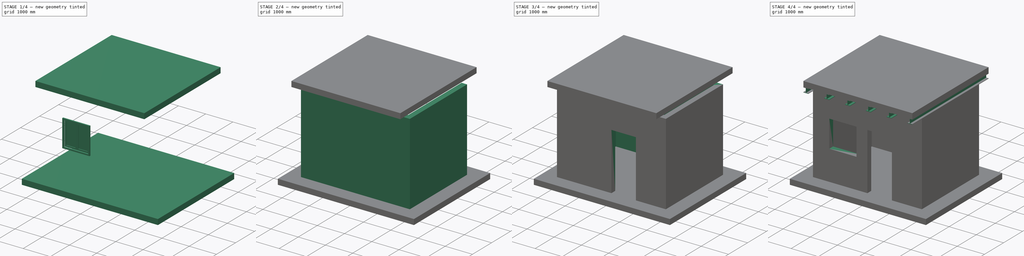
[diagram: build sequence overview — one tinted view per stage of 4, left to right]
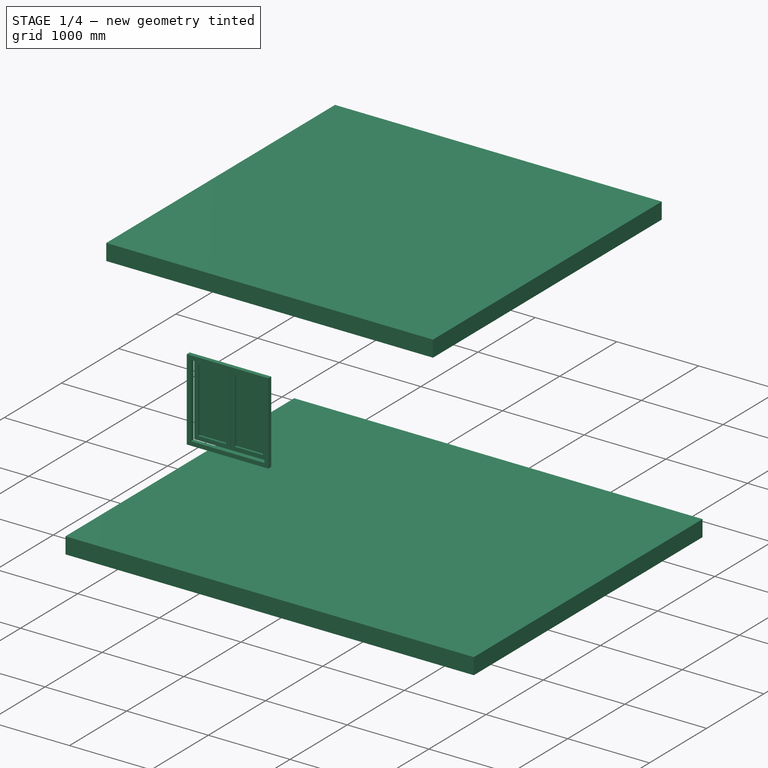
[diagram: stage 1 of 4 — iso view after this stage's code; geometry added in this stage tinted green]
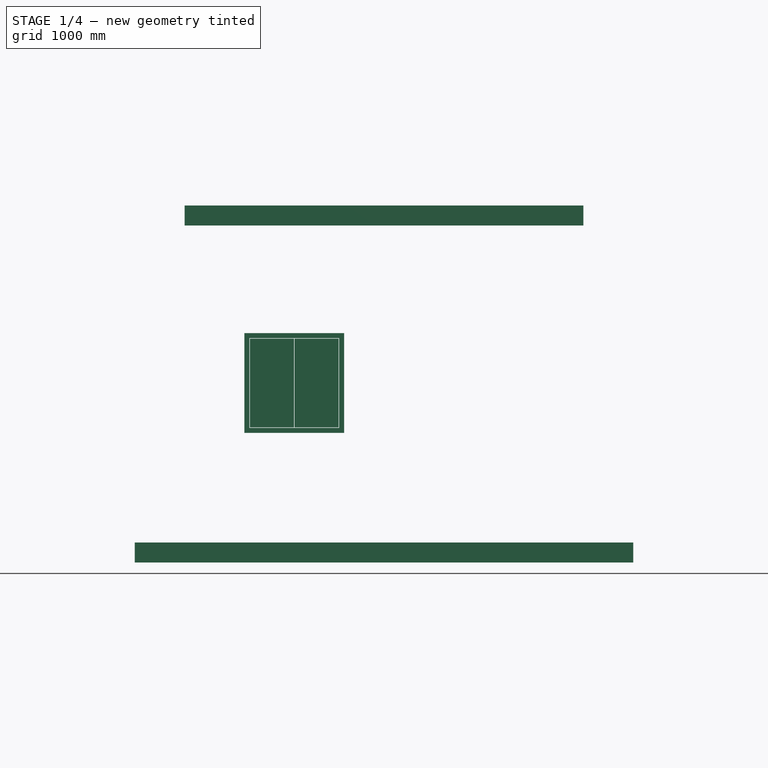
[diagram: stage 1 of 4 — front view after this stage's code; geometry added in this stage tinted green]
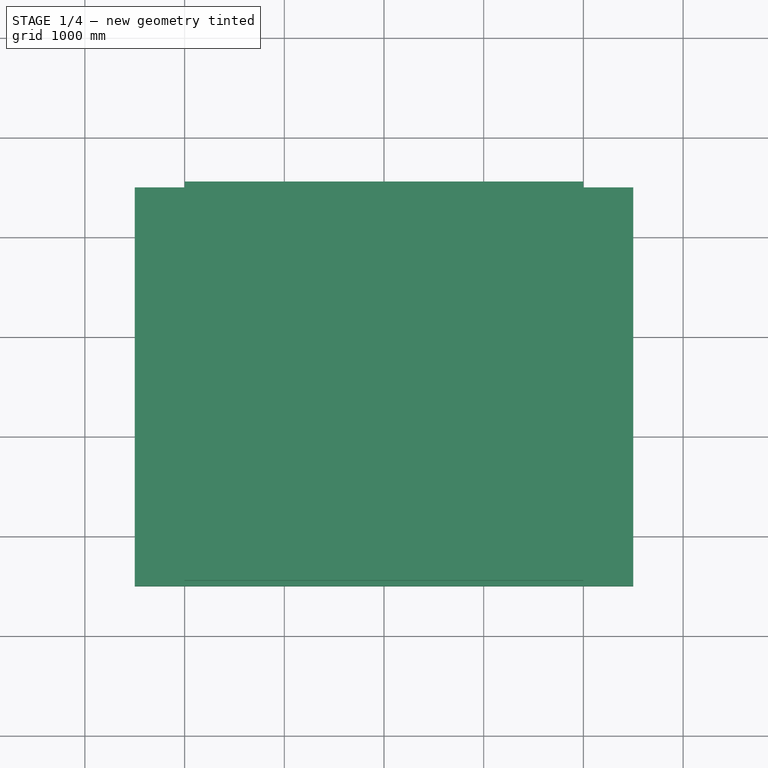
[diagram: stage 1 of 4 — top view after this stage's code; geometry added in this stage tinted green]
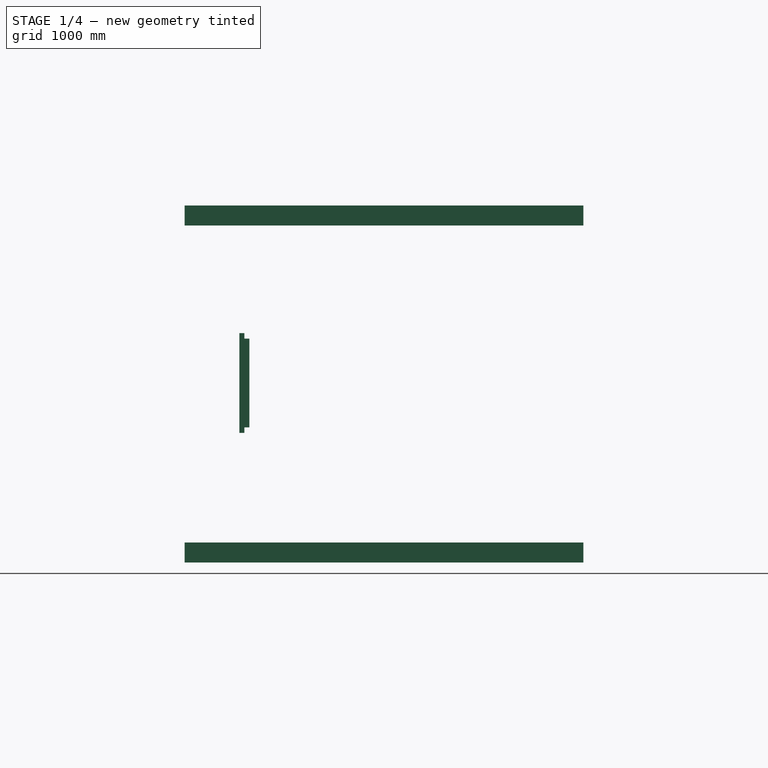
[diagram: stage 1 of 4 — right view after this stage's code; geometry added in this stage tinted green]
FCSTD DOCUMENT  (FreeCAD 0.16R6392 (Git))
Label: house
License: All rights reserved
LicenseURL: http://en.wikipedia.org/wiki/All_rights_reserved
objects: App::FeaturePython×14, Part::FeaturePython×12, Part::Part2DObjectPython×7, Drawing::FeatureViewPython×4, Sketcher::SketchObject×2, App::DocumentObjectGroup×2, App::DocumentObjectGroupPython×2, Drawing::FeaturePage×1
note: 23 computed .brp shape members not serialized (recipe doc carries the construction recipe); baked Part::Feature solids carry a one-line shape summary decoded from their .brp

FEATURE [Sketcher::SketchObject] Sketch001
  Placement = pos=(600,0,1100) rot=(1,0,0;1.5708rad)
  sketch-geometry (24):
    g0: LineSegment StartX=0 StartY=0 StartZ=0 EndX=1000 EndY=0 EndZ=0
    g1: LineSegment StartX=1000 StartY=0 StartZ=0 EndX=1000 EndY=1000 EndZ=0
    g2: LineSegment StartX=1000 StartY=1000 StartZ=0 EndX=0 EndY=1000 EndZ=0
    g3: LineSegment StartX=0 StartY=1000 StartZ=0 EndX=0 EndY=0 EndZ=0
    g4: LineSegment StartX=50 StartY=50 StartZ=0 EndX=950 EndY=50 EndZ=0
    g5: LineSegment StartX=950 StartY=50 StartZ=0 EndX=950 EndY=950 EndZ=0
    g6: LineSegment StartX=950 StartY=950 StartZ=0 EndX=50 EndY=950 EndZ=0
    g7: LineSegment StartX=50 StartY=950 StartZ=0 EndX=50 EndY=50 EndZ=0
    g8: LineSegment StartX=55 StartY=55 StartZ=0 EndX=497.5 EndY=55 EndZ=0
    g9: LineSegment StartX=497.5 StartY=55 StartZ=0 EndX=497.5 EndY=945 EndZ=0
    g10: LineSegment StartX=497.5 StartY=945 StartZ=0 EndX=55 EndY=945 EndZ=0
    g11: LineSegment StartX=55 StartY=945 StartZ=0 EndX=55 EndY=55 EndZ=0
    g12: LineSegment StartX=105 StartY=105 StartZ=0 EndX=447.5 EndY=105 EndZ=0
    g13: LineSegment StartX=447.5 StartY=105 StartZ=0 EndX=447.5 EndY=895 EndZ=0
    g14: LineSegment StartX=447.5 StartY=895 StartZ=0 EndX=105 EndY=895 EndZ=0
    g15: LineSegment StartX=105 StartY=895 StartZ=0 EndX=105 EndY=105 EndZ=0
    g16: LineSegment StartX=502.5 StartY=55 StartZ=0 EndX=945 EndY=55 EndZ=0
    g17: LineSegment StartX=945 StartY=55 StartZ=0 EndX=945 EndY=945 EndZ=0
    g18: LineSegment StartX=945 StartY=945 StartZ=0 EndX=502.5 EndY=945 EndZ=0
    g19: LineSegment StartX=502.5 StartY=945 StartZ=0 EndX=502.5 EndY=55 EndZ=0
    g20: LineSegment StartX=552.5 StartY=105 StartZ=0 EndX=895 EndY=105 EndZ=0
    g21: LineSegment StartX=895 StartY=105 StartZ=0 EndX=895 EndY=895 EndZ=0
    g22: LineSegment StartX=895 StartY=895 StartZ=0 EndX=552.5 EndY=895 EndZ=0
    g23: LineSegment StartX=552.5 StartY=895 StartZ=0 EndX=552.5 EndY=105 EndZ=0
  constraints (71):
    c: Coincident(g0,g1)
    c: Coincident(g1,g2)
    c: Coincident(g2,g3)
    c: Coincident(g3,g0)
    c: Horizontal(g0)
    c: Horizontal(g2)
    c: Vertical(g1)
    c: Vertical(g3)
    c: Coincident(g4,g5)
    c: Coincident(g5,g6)
    c: Coincident(g6,g7)
    c: Coincident(g7,g4)
    c: Horizontal(g4)
    c: Horizontal(g6)
    c: Vertical(g5)
    c: Vertical(g7)
    c: DistanceY(g1) = 1000
    c: DistanceX(g0) = 1000
    c: DistanceY(g6,g2) = 50
    c: DistanceX(g2,g6) = 50
    c: DistanceX(g4,g0) = 50
    c: DistanceY(g0,g4) = 50
    c: Coincident(g0,g-1)
    c: Coincident(g8,g9)
    c: Coincident(g9,g10)
    c: Coincident(g10,g11)
    c: Coincident(g11,g8)
    c: Horizontal(g8)
    c: Horizontal(g10)
    c: Vertical(g9)
    c: Vertical(g11)
    c: Coincident(g12,g13)
    c: Coincident(g13,g14)
    c: Coincident(g14,g15)
    c: Coincident(g15,g12)
    c: Horizontal(g12)
    c: Horizontal(g14)
    c: Vertical(g13)
    c: Vertical(g15)
    c: Coincident(g16,g17)
    c: Coincident(g17,g18)
    c: Coincident(g18,g19)
    c: Coincident(g19,g16)
    c: Horizontal(g16)
    c: Horizontal(g18)
    c: Vertical(g17)
    c: Vertical(g19)
    c: Coincident(g20,g21)
    c: Coincident(g21,g22)
    c: Coincident(g22,g23)
    c: Coincident(g23,g20)
    c: Horizontal(g20)
    c: Horizontal(g22)
    c: Vertical(g21)
    c: Vertical(g23)
    c: DistanceY(g8,g12) = 50
    c: DistanceX(g8,g12) = 50
    c: DistanceX(g21,g17) = 50
    c: DistanceY(g21,g17) = 50
    c: DistanceX(g16,g20) = 50
    c: DistanceX(g14,g10) = 50
    c: Equal(g22,g14)
    c: DistanceY(g8,g16) = 0
    c: DistanceY(g10,g18) = 0
    c: DistanceX(g4,g8) = 5
    c: DistanceY(g4,g8) = 5
    c: DistanceX(g6,g18) = -5
    c: DistanceY(g6,g18) = -5
    c: DistanceX(g9,g19) = 5
    c: PointOnObject(g13,g22)
    c: PointOnObject(g20,g12)
FEATURE [Part::FeaturePython] Window001  # WARN: FeaturePython — macro-defined, semantics opaque (R4)
  Base = -> Sketch001
  Height = 1000
  HoleDepth = 0
  MoveWithHost = true
  Normal = (0,1,0)
  Preset = 3
  Role = 0
  Width = 1000
  WindowParts = OuterFrame | Frame | Wire0,Wire1 | 50.0 | 50.0 | LeftFrame | Frame | Wire2,Wire3 | 50.0 | 100.0 | LeftGlass | Glass panel | Wire3 | 5.0 | 125.0 | RightFrame | Frame | Wire4,Wire5 | 50.0 | 100.0 | RightGlass | Glass panel | Wire5 | 5.0 | 125.0
FEATURE [Part::Part2DObjectPython] Rectangle  # Draft 2D object (typed FeaturePython)
  ChamferSize = 0
  Columns = 1
  FilletRadius = 0
  Height = -4000
  Length = -4000
  MakeFace = true
  Placement = pos=(0,-500,3180) rot=(0,0,1;3.14159rad)
  Rows = 1
FEATURE [Part::FeaturePython] Structure001  # WARN: FeaturePython — macro-defined, semantics opaque (R4)
  Base = -> Rectangle
  Height = 200
  Length = 0
  MoveWithHost = false
  Nodes = (2) [(2000,1500,3180),(2000,1500,3380)]
  Normal = (0,0,1)
  Role = 1
  Width = 200
FEATURE [App::FeaturePython] Dimension  # Draft dimension (typed FeaturePython)
  Dimline = (0,-1000,0)
  Direction = (0,0,0)
  Distance = 600
  End = (600,0,0)
  Normal = (0,0,1)
  Start = (0,0,0)
FEATURE [App::FeaturePython] Dimension001  # Draft dimension (typed FeaturePython)
  Dimline = (497.34,-1000,0)
  Direction = (0,0,0)
  Distance = 1000
  End = (1600,0,0)
  Normal = (0,0,1)
  Start = (600,0,0)
FEATURE [App::FeaturePython] Dimension002  # Draft dimension (typed FeaturePython)
  Dimline = (2000,-1000,0)
  Direction = (0,0,0)
  Distance = 400
  End = (2000,0,0)
  Normal = (0,0,1)
  Start = (1600,0,0)
FEATURE [App::FeaturePython] Dimension003  # Draft dimension (typed FeaturePython)
  Dimline = (3000,-1000,0)
  Direction = (0,0,0)
  Distance = 900
  End = (2900,0,0)
  Normal = (0,0,1)
  Start = (2000,0,0)
FEATURE [App::FeaturePython] Dimension004  # Draft dimension (typed FeaturePython)
  Dimline = (4000,-1000,0)
  Direction = (0,0,0)
  Distance = 1100
  End = (4000,0,0)
  Normal = (0,0,1)
  Start = (2900,0,0)
FEATURE [App::FeaturePython] Dimension005  # Draft dimension (typed FeaturePython)
  Dimline = (5000,2000,0)
  Direction = (0,0,0)
  Distance = 3000
  End = (4000,3000,0)
  Normal = (0,0,1)
  Start = (4000,0,0)
FEATURE [App::FeaturePython] Dimension006  # Draft dimension (typed FeaturePython)
  Dimline = (3771.03,-1538.27,0)
  Direction = (0,0,0)
  Distance = 4000
  End = (4000,0,0)
  Normal = (0,0,1)
  Start = (0,0,0)
FEATURE [App::DocumentObjectGroup] Group  label="Plan dimensions"
  Group = -> [Dimension,Dimension001,Dimension002,Dimension003,Dimension004,Dimension005,Dimension006]
FEATURE [App::FeaturePython] Dimension007  # Draft dimension (typed FeaturePython)
  Dimline = (-445.624,0,841.422)
  Direction = (0,0,0)
  Distance = 1100
  End = (0,0,1100)
  Normal = (0,-1,0)
  Start = (0,0,0)
FEATURE [App::FeaturePython] Dimension008  # Draft dimension (typed FeaturePython)
  Dimline = (-445.624,0,1100)
  Direction = (0,0,0)
  Distance = 1000
  End = (600,0,2100)
  Normal = (0,-1,0)
  Start = (600,0,1100)
FEATURE [App::FeaturePython] Dimension009  # Draft dimension (typed FeaturePython)
  Dimline = (-445.624,0,1964.12)
  Direction = (0,0,0)
  Distance = 900
  End = (600,0,3000)
  Normal = (0,-1,0)
  Start = (600,0,2100)
FEATURE [App::FeaturePython] Dimension010  # Draft dimension (typed FeaturePython)
  Dimline = (-445.624,0,2939.44)
  Direction = (0,0,0)
  Distance = 380
  End = (0,0,3380)
  Normal = (0,-1,0)
  Start = (0,0,3000)
FEATURE [App::FeaturePython] Dimension011  # Draft dimension (typed FeaturePython)
  Dimline = (-767.464,0,2716.62)
  Direction = (0,0,0)
  Distance = 3380
  End = (0,0,3380)
  Normal = (0,-1,0)
  Start = (0,0,0)
FEATURE [App::DocumentObjectGroup] Group001  label="Elevation dimensions"
  Group = -> [Dimension007,Dimension008,Dimension009,Dimension010,Dimension011]
FEATURE [Part::Part2DObjectPython] Rectangle001  # Draft 2D object (typed FeaturePython)
  ChamferSize = 0
  Columns = 1
  FilletRadius = 0
  Height = -4000
  Length = 5000
  MakeFace = true
  Placement = pos=(-500,3500,0) rot=(0,0,1;0rad)
  Rows = 1
FEATURE [Part::FeaturePython] Structure002  # WARN: FeaturePython — macro-defined, semantics opaque (R4)
  Base = -> Rectangle001
  Height = 200
  Length = 0
  MoveWithHost = false
  Nodes = (2) [(2000,1500,0),(2000,1500,-200)]
  Normal = (0,0,-1)
  Role = 1
  Width = 200
FEATURE [App::DocumentObjectGroupPython] Floor  # scripted group (container) (typed FeaturePython)
  Group = -> [Array,Wall006,Structure001,Structure002]
  Height = 0
FEATURE [App::DocumentObjectGroupPython] Building  # scripted group (container) (typed FeaturePython)
  BuildingType = 0
  Group = -> [Floor]
  Height = 0
FEATURE [App::FeaturePython] Section  # WARN: FeaturePython — macro-defined, semantics opaque (R4)
  Objects = -> [Building]
  OnlySolids = true
  Placement = pos=(2000,1500,1500) rot=(0,0,1;0rad)
FEATURE [Drawing::FeatureViewPython] View  label="View of Section"  # drawing view (typed FeaturePython)
  FontSize = 12
  LineWidth = 0.15
  RenderingMode = 1
  Rotation = 0
  Scale = 0.03
  ShowCut = true
  ShowFill = true
  Source = -> Section
  ViewResult = <blob: 10954 chars omitted>
  Visible = true
  X = 50
  Y = 140
FEATURE [Drawing::FeatureViewPython] ViewGroup  # drawing view (typed FeaturePython)
  Direction = (0,0,0)
  FillStyle = 0
  FontSize = 10
  LineStyle = 0
  LineWidth = 0.15
  Rotation = 0
  Scale = 0.03
  Source = -> Group
  ViewResult = <blob: 5705 chars omitted>
  Visible = true
  X = 50
  Y = 140
FEATURE [App::FeaturePython] Section001  # WARN: FeaturePython — macro-defined, semantics opaque (R4)
  Objects = -> [Building]
  OnlySolids = true
  Placement = pos=(2000,-2000,1500) rot=(1,0,0;1.5708rad)
FEATURE [Drawing::FeatureViewPython] View001  label="View of Section001"  # drawing view (typed FeaturePython)
  FontSize = 12
  LineWidth = 0.35
  RenderingMode = 0
  Rotation = 0
  Scale = 0.03
  ShowCut = false
  ShowFill = false
  Source = -> Section001
  ViewResult = <blob: 4600 chars omitted>
  Visible = true
  X = 250
  Y = 150
FEATURE [Drawing::FeatureViewPython] ViewGroup001  # drawing view (typed FeaturePython)
  Direction = (0,-1,0)
  FillStyle = 0
  FontSize = 10
  LineStyle = 0
  LineWidth = 0.15
  Rotation = 90
  Scale = 0.03
  Source = -> Group001
  ViewResult = <blob: 4541 chars omitted>
  Visible = true
  X = 250
  Y = 150
FEATURE [Drawing::FeaturePage] Page
  EditableTexts = AUTHOR NAME | CREATION DATE | SUPERVISOR NAME | CHECK DATE | SCALE | WEIGHT | NUMBER | SHEET | TITLE | SUBTITLE
  Group = -> [View,ViewGroup,View001,ViewGroup001]
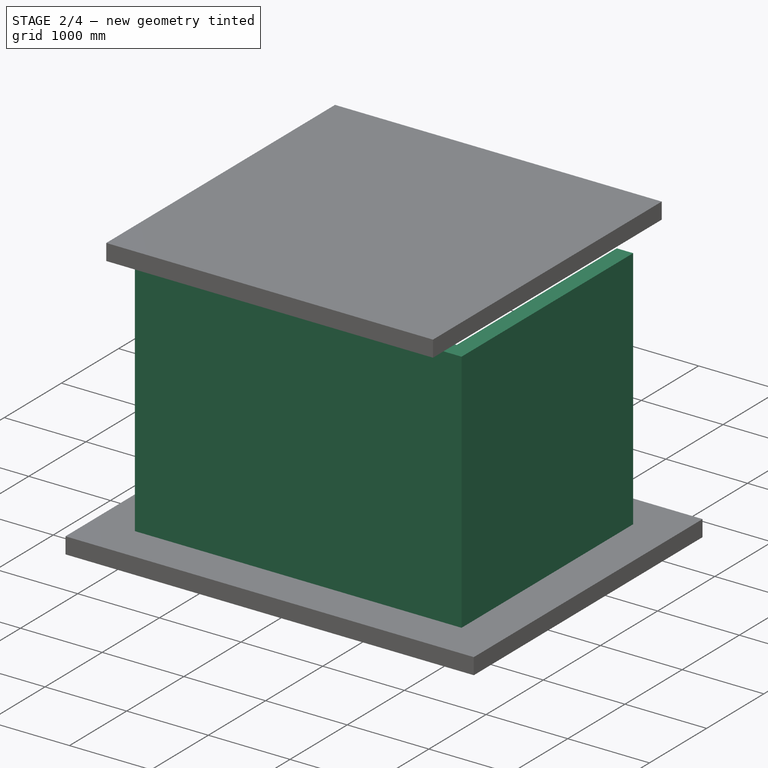
[diagram: stage 2 of 4 — iso view after this stage's code; geometry added in this stage tinted green]
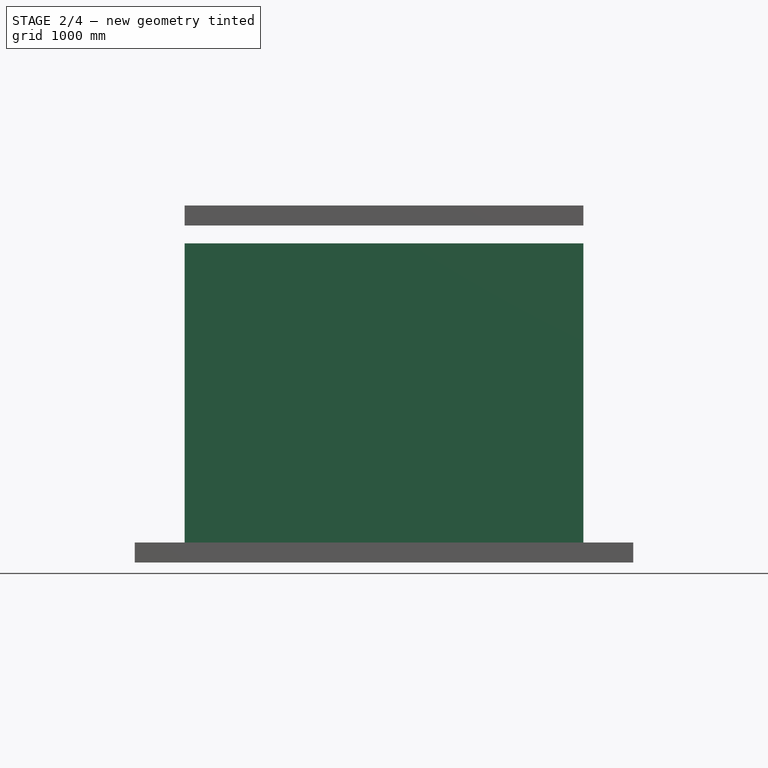
[diagram: stage 2 of 4 — front view after this stage's code; geometry added in this stage tinted green]
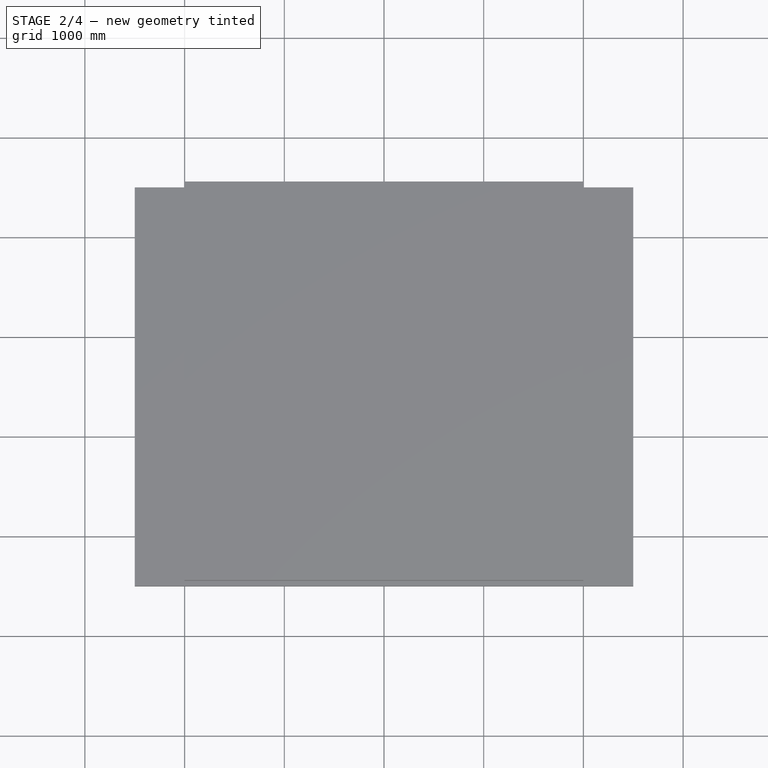
[diagram: stage 2 of 4 — top view after this stage's code; geometry added in this stage tinted green]
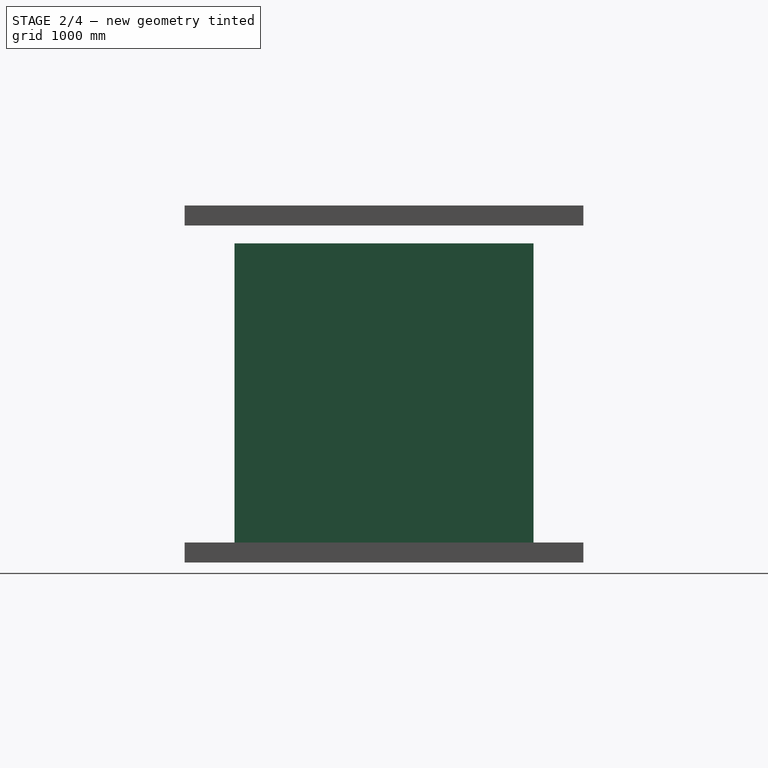
[diagram: stage 2 of 4 — right view after this stage's code; geometry added in this stage tinted green]
FEATURE [Part::FeaturePython] Wall003  # WARN: FeaturePython — macro-defined, semantics opaque (R4)
  Align = 0
  Base = -> Line002
  Face = 0
  Height = 3000
  Length = 3000
  MoveWithHost = false
  Normal = (0,0,0)
  Role = 0
  Width = 200
FEATURE [Part::Part2DObjectPython] Line003  # Draft 2D object (typed FeaturePython)
  ChamferSize = 0
  Closed = false
  End = (0,0,0)
  FilletRadius = 0
  Length = 4000
  MakeFace = false
  Points = (2) [(4000,0,0),(0,0,0)]
  Start = (4000,0,0)
  Subdivisions = 0
FEATURE [Part::FeaturePython] Wall004  # WARN: FeaturePython — macro-defined, semantics opaque (R4)
  Align = 0
  Base = -> Line003
  Face = 0
  Height = 3000
  Length = 4000
  MoveWithHost = false
  Normal = (0,0,0)
  Role = 0
  Width = 200
FEATURE [Sketcher::SketchObject] Sketch
  Placement = pos=(2000,0,0) rot=(1,0,0;1.5708rad)
  sketch-geometry (8):
    g0: LineSegment StartX=0 StartY=0 StartZ=0 EndX=900 EndY=0 EndZ=0
    g1: LineSegment StartX=900 StartY=0 StartZ=0 EndX=900 EndY=2100 EndZ=0
    g2: LineSegment StartX=900 StartY=2100 StartZ=0 EndX=0 EndY=2100 EndZ=0
    g3: LineSegment StartX=0 StartY=2100 StartZ=0 EndX=0 EndY=0 EndZ=0
    g4: LineSegment StartX=50 StartY=0 StartZ=0 EndX=850 EndY=0 EndZ=0
    g5: LineSegment StartX=850 StartY=0 StartZ=0 EndX=850 EndY=2050 EndZ=0
    g6: LineSegment StartX=850 StartY=2050 StartZ=0 EndX=50 EndY=2050 EndZ=0
    g7: LineSegment StartX=50 StartY=2050 StartZ=0 EndX=50 EndY=0 EndZ=0
  constraints (23):
    c: Coincident(g0,g1)
    c: Coincident(g1,g2)
    c: Coincident(g2,g3)
    c: Coincident(g3,g0)
    c: Horizontal(g0)
    c: Horizontal(g2)
    c: Vertical(g1)
    c: Vertical(g3)
    c: Coincident(g4,g5)
    c: Coincident(g5,g6)
    c: Coincident(g6,g7)
    c: Coincident(g7,g4)
    c: Horizontal(g4)
    c: Horizontal(g6)
    c: Vertical(g5)
    c: Vertical(g7)
    c: DistanceY(g1) = 2100
    c: DistanceX(g0) = 900
    c: DistanceY(g6,g2) = 50
    c: DistanceX(g2,g6) = 50
    c: DistanceX(g4,g0) = 50
    c: DistanceY(g0,g4) = 0
    c: Coincident(g0,g-1)
FEATURE [Part::FeaturePython] Window  # WARN: FeaturePython — macro-defined, semantics opaque (R4)
  Base = -> Sketch
  Height = 2100
  HoleDepth = 0
  MoveWithHost = true
  Normal = (0,1,0)
  Preset = 6
  Role = 1
  Width = 900
  WindowParts = OuterFrame | Frame | Wire0,Wire1 | 50.0 | 50.0 | Door | Solid panel | Wire1 | 50.0 | 100.0
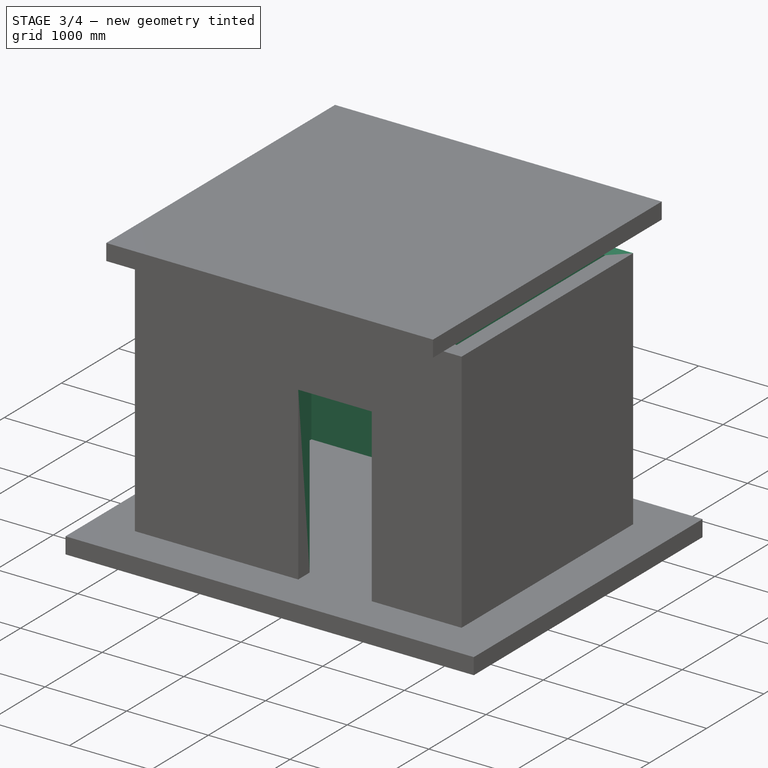
[diagram: stage 3 of 4 — iso view after this stage's code; geometry added in this stage tinted green]
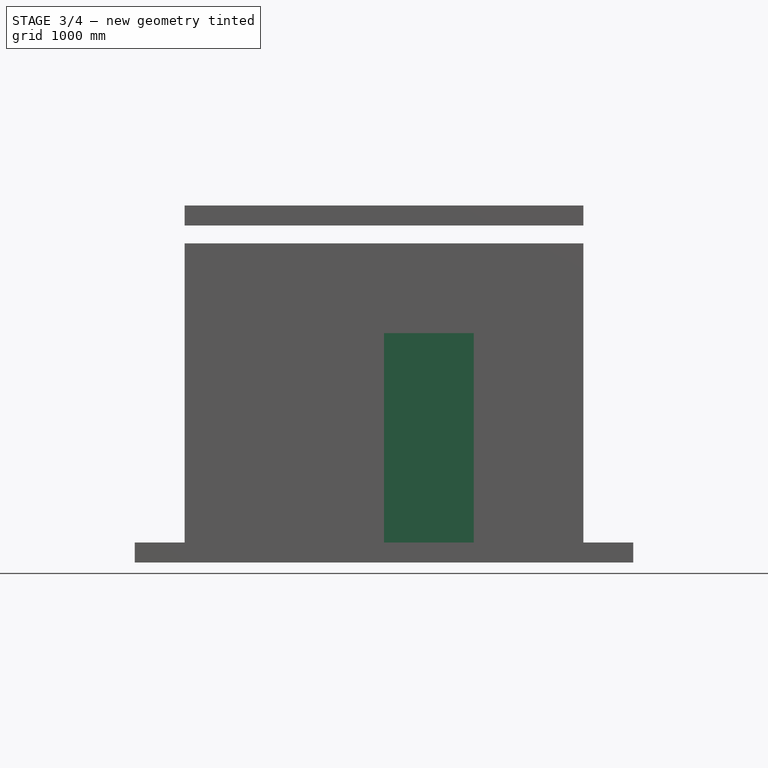
[diagram: stage 3 of 4 — front view after this stage's code; geometry added in this stage tinted green]
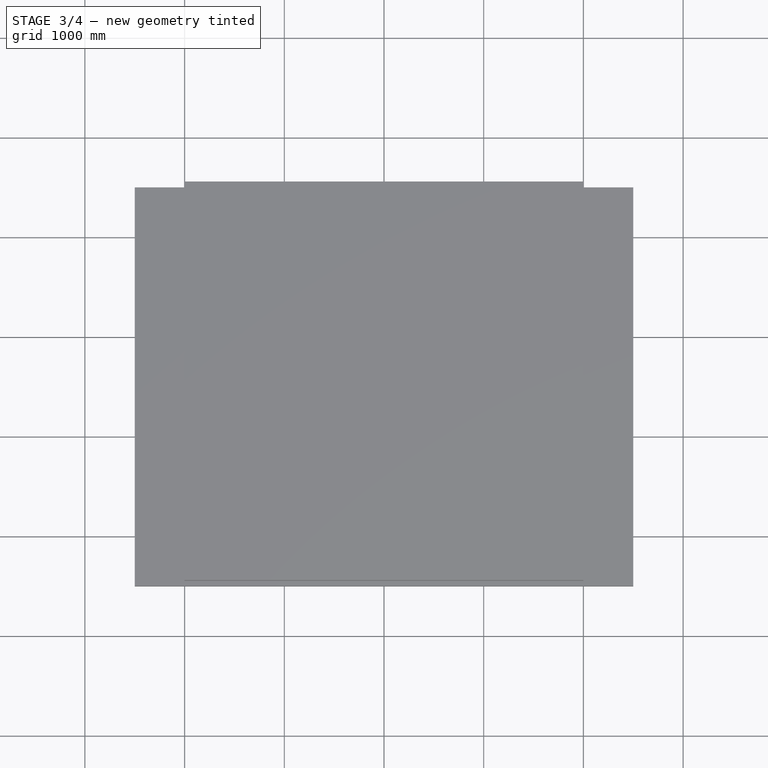
[diagram: stage 3 of 4 — top view after this stage's code; geometry added in this stage tinted green]
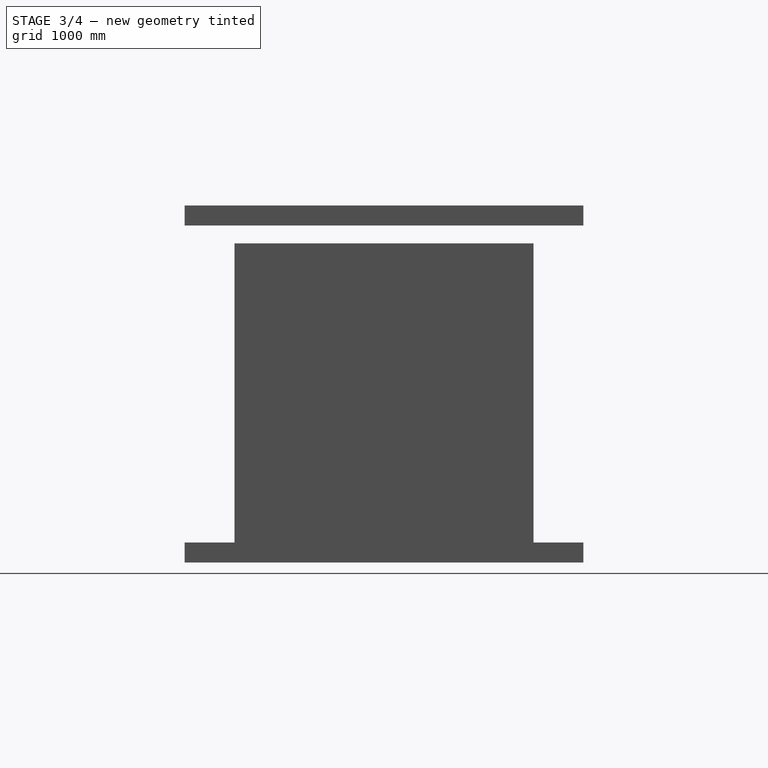
[diagram: stage 3 of 4 — right view after this stage's code; geometry added in this stage tinted green]
FEATURE [Part::Part2DObjectPython] Line  # Draft 2D object (typed FeaturePython)
  ChamferSize = 0
  Closed = false
  End = (0,3000,0)
  FilletRadius = 0
  Length = 3000
  MakeFace = false
  Points = (2) [(0,0,0),(0,3000,0)]
  Start = (0,0,0)
  Subdivisions = 0
FEATURE [Part::Part2DObjectPython] Line001  # Draft 2D object (typed FeaturePython)
  ChamferSize = 0
  Closed = false
  End = (4000,3000,0)
  FilletRadius = 0
  Length = 4000
  MakeFace = false
  Points = (2) [(0,3000,0),(4000,3000,0)]
  Start = (0,3000,0)
  Subdivisions = 0
FEATURE [Part::Part2DObjectPython] Line002  # Draft 2D object (typed FeaturePython)
  ChamferSize = 0
  Closed = false
  End = (4000,0,0)
  FilletRadius = 0
  Length = 3000
  MakeFace = false
  Points = (2) [(4000,3000,0),(4000,0,0)]
  Start = (4000,3000,0)
  Subdivisions = 0
FEATURE [Part::FeaturePython] Wall002  # WARN: FeaturePython — macro-defined, semantics opaque (R4)
  Align = 0
  Base = -> Line001
  Face = 0
  Height = 3000
  Length = 4000
  MoveWithHost = false
  Normal = (0,0,0)
  Role = 0
  Width = 200
FEATURE [Part::FeaturePython] Wall  # WARN: FeaturePython — macro-defined, semantics opaque (R4)
  Additions = -> [Wall004,Wall003,Wall002]
  Align = 0
  Base = -> Line
  Face = 0
  Height = 3000
  Length = 3000
  MoveWithHost = false
  Normal = (0,0,0)
  Role = 0
  Width = 200
FEATURE [Part::FeaturePython] Wall005  # WARN: FeaturePython — macro-defined, semantics opaque (R4)
  Align = 2
  Base = -> Wall
  Face = 0
  Height = 2000
  Length = 0
  MoveWithHost = false
  Normal = (0,0,0)
  Role = 0
  Subtractions = -> [Window]
  Width = 200
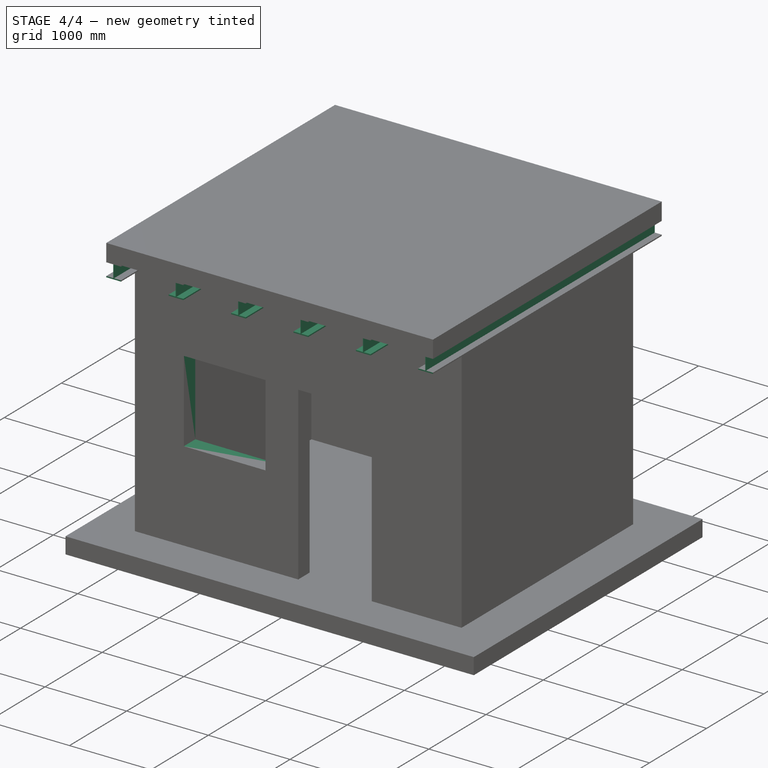
[diagram: stage 4 of 4 — iso view after this stage's code; geometry added in this stage tinted green]
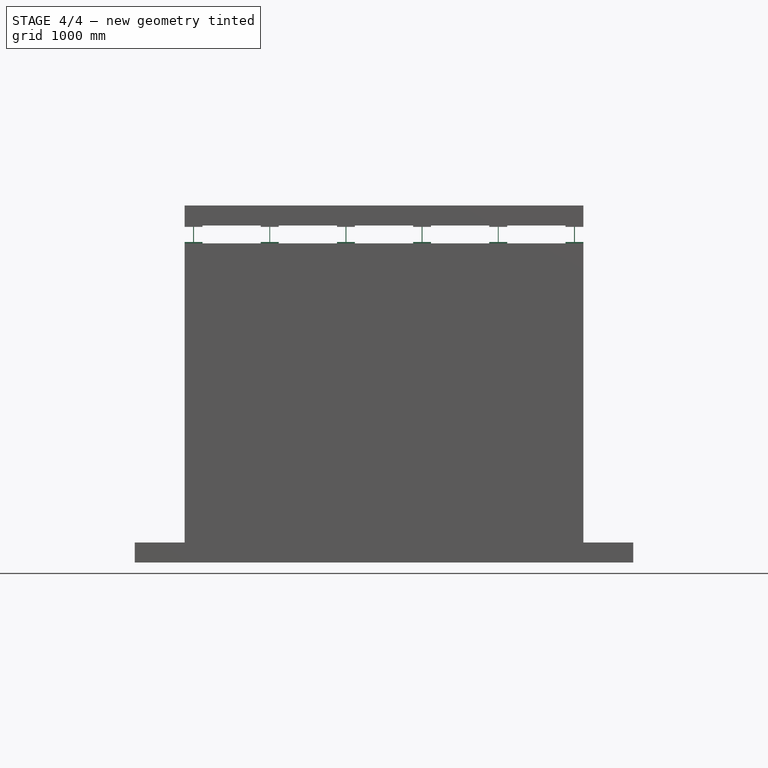
[diagram: stage 4 of 4 — front view after this stage's code; geometry added in this stage tinted green]
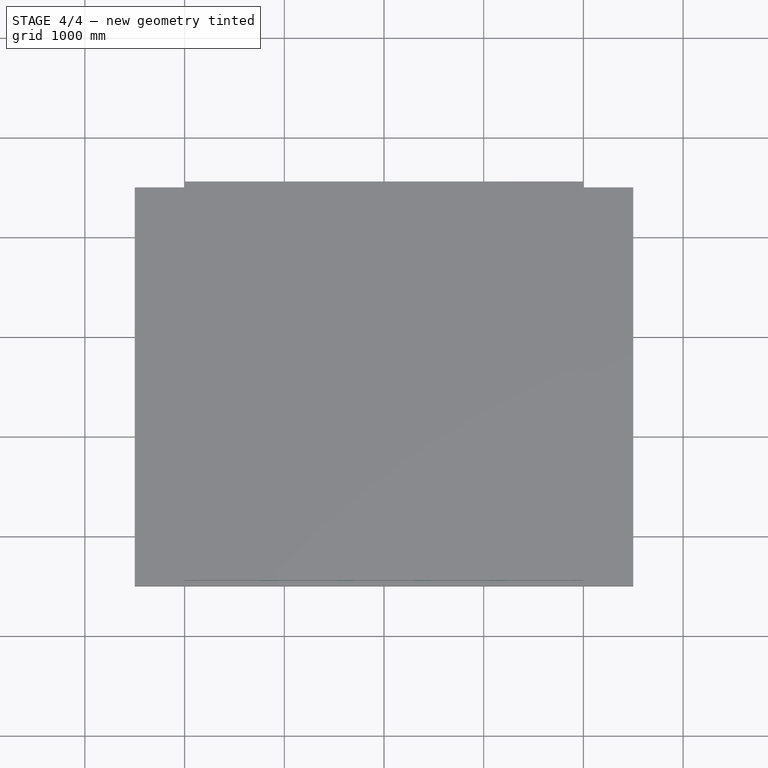
[diagram: stage 4 of 4 — top view after this stage's code; geometry added in this stage tinted green]
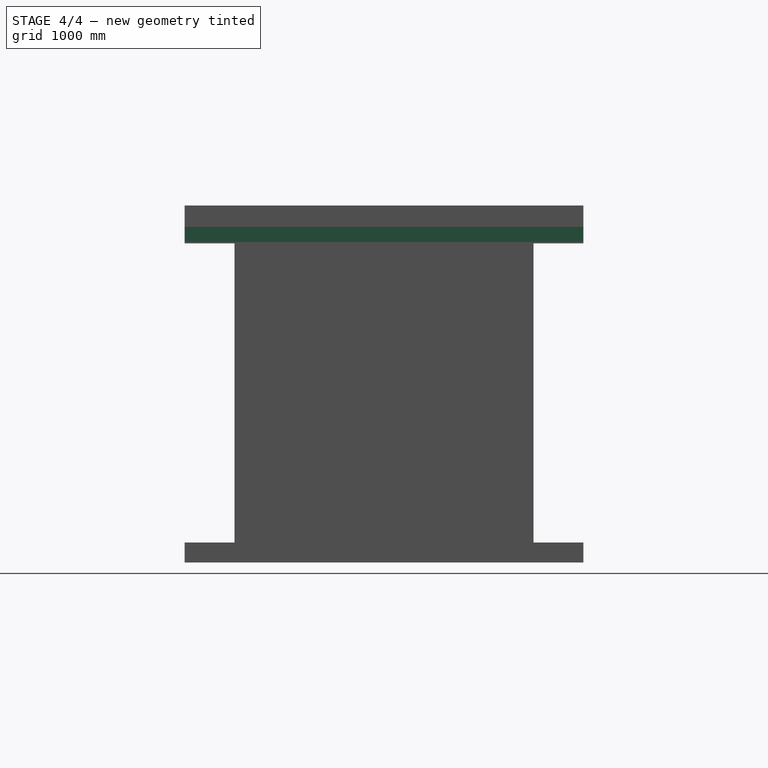
[diagram: stage 4 of 4 — right view after this stage's code; geometry added in this stage tinted green]
FEATURE [Part::Part2DObjectPython] HEB180  # Draft 2D object (typed FeaturePython)
  FlangeThickness = 14
  Height = 180
  WebThickness = 8.5
  Width = 180
FEATURE [Part::FeaturePython] Structure  # WARN: FeaturePython — macro-defined, semantics opaque (R4)
  Base = -> HEB180
  Height = 4000
  Length = 0
  MoveWithHost = false
  Nodes = (2) [(1.65295e-14,-4.59631e-15,0),(1.65295e-14,-4.59631e-15,4000)]
  Normal = (0,0,0)
  Placement = pos=(90,3500,3090) rot=(1,0,0;1.5708rad)
  Profile = HEB180
  Role = 1
  Width = 200
FEATURE [Part::FeaturePython] Array  # Draft array (typed FeaturePython)
  Angle = 360
  ArrayType = 0
  Axis = (0,0,1)
  Base = -> Structure
  Center = (0,0,0)
  Fuse = false
  IntervalAxis = (0,0,0)
  IntervalX = (764,0,0)
  IntervalY = (0,1,0)
  IntervalZ = (0,0,0)
  NumberPolar = 1
  NumberX = 6
  NumberY = 1
  NumberZ = 1
FEATURE [Part::FeaturePython] Wall006  # WARN: FeaturePython — macro-defined, semantics opaque (R4)
  Align = 2
  Base = -> Wall005
  Face = 0
  Height = 2000
  Length = 0
  MoveWithHost = false
  Normal = (0,0,0)
  Role = 0
  Subtractions = -> [Window001]
  Width = 200
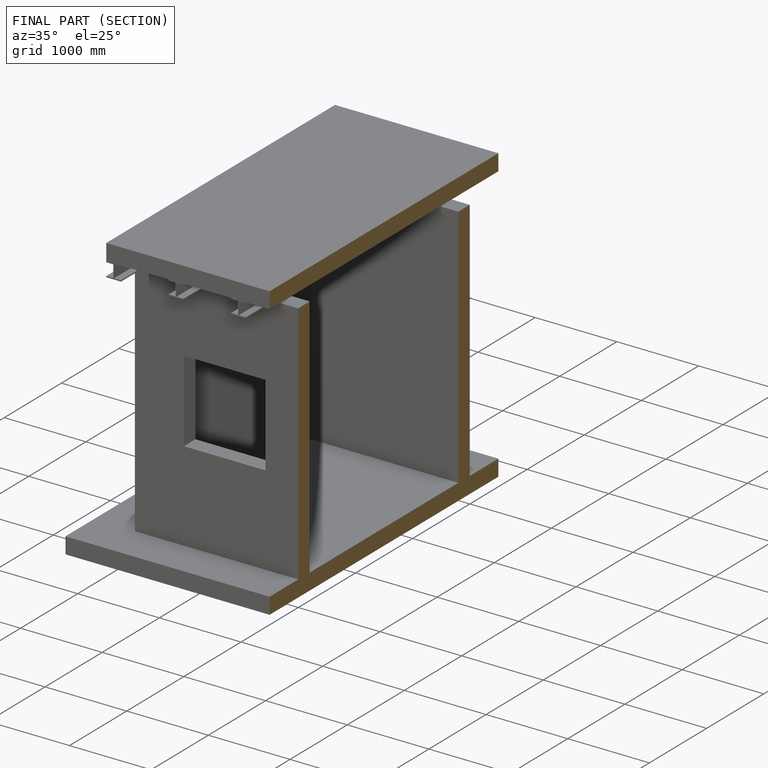
[diagram: finished part — half-section view (interior)]
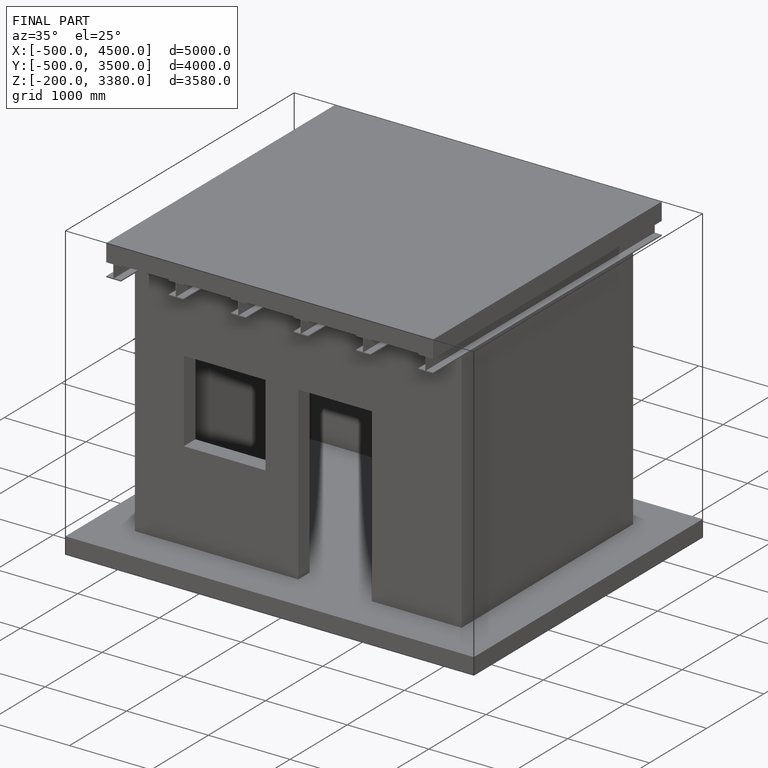
[diagram: finished part — iso view with bounding-box wireframe]
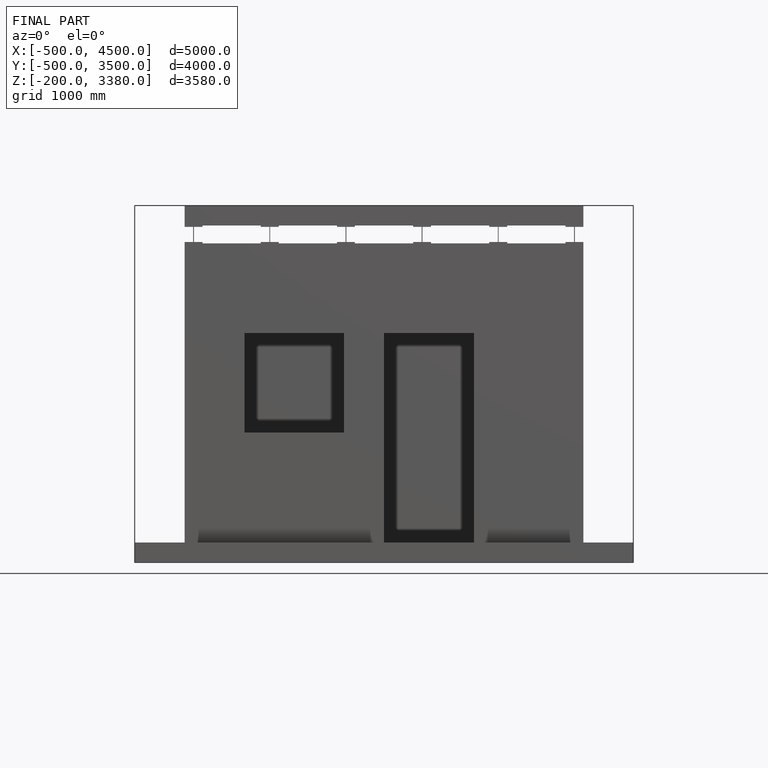
[diagram: finished part — front view with bounding-box wireframe]
